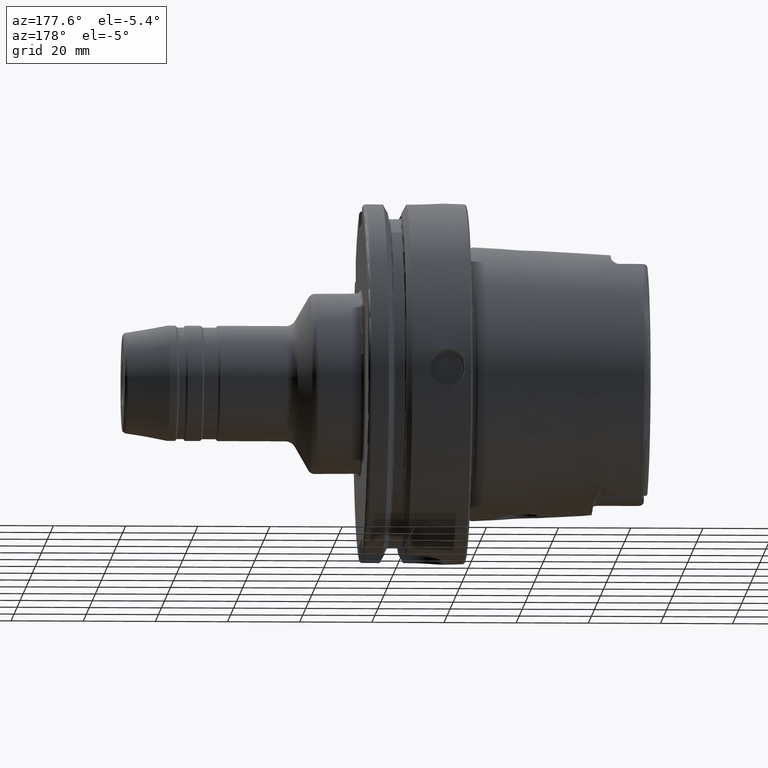
[diagram: clean part render]
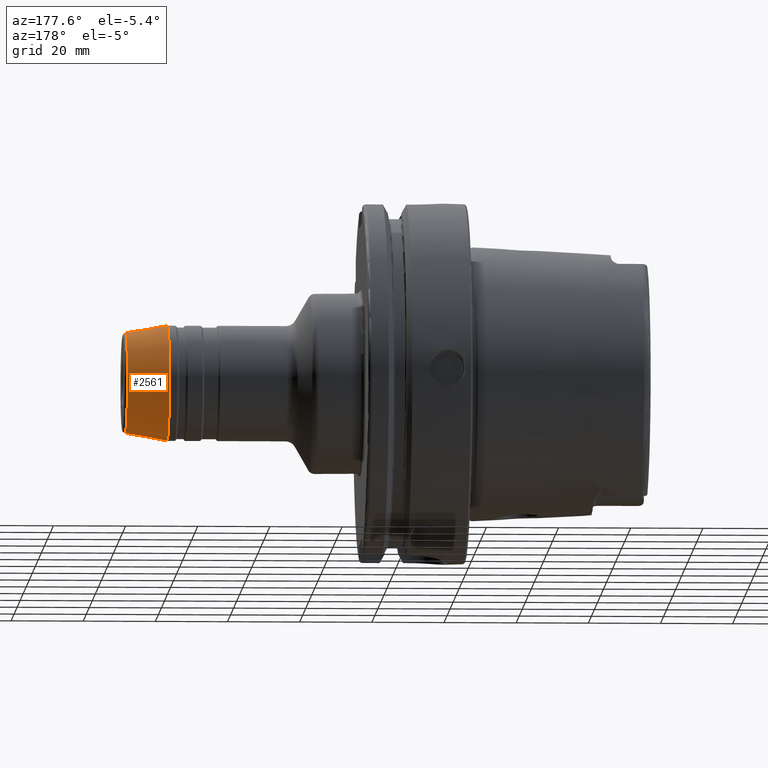
[diagram: same view with one face highlighted and labeled with its STEP entity id]
A machine part, auxiliary view. The second image highlights one B-rep face of the part: STEP entity #2561.
In plain terms, the highlighted conical surface has half-angle 10 deg.
Its self-contained STEP definition (entity closure, byte-faithful):
#148=CONICAL_SURFACE('',#2783,14.9,0.174532925199433);
#172=LINE('',#4094,#286);
#286=VECTOR('',#3258,14.9);
#449=FACE_OUTER_BOUND('',#585,.T.);
#585=EDGE_LOOP('',(#1807,#1808,#1809,#1810,#1811,#1812,#1813,#1814));
#777=CIRCLE('',#2779,15.9848077530122);
#778=CIRCLE('',#2780,15.9848077530122);
#780=CIRCLE('',#2782,15.9848077530122);
#781=CIRCLE('',#2784,13.9457081218349);
#782=CIRCLE('',#2785,13.9457081218349);
#783=CIRCLE('',#2786,13.9457081218349);
#1001=VERTEX_POINT('',#4081);
#1002=VERTEX_POINT('',#4082);
#1003=VERTEX_POINT('',#4084);
#1004=VERTEX_POINT('',#4089);
#1005=VERTEX_POINT('',#4090);
#1006=VERTEX_POINT('',#4092);
#1312=EDGE_CURVE('',#1001,#1002,#777,.T.);
#1313=EDGE_CURVE('',#1002,#1003,#778,.T.);
#1315=EDGE_CURVE('',#1003,#1001,#780,.T.);
#1316=EDGE_CURVE('',#1004,#1005,#781,.T.);
#1317=EDGE_CURVE('',#1006,#1004,#782,.T.);
#1318=EDGE_CURVE('',#1006,#1002,#172,.T.);
#1319=EDGE_CURVE('',#1005,#1006,#783,.T.);
#1807=ORIENTED_EDGE('',*,*,#1316,.F.);
#1808=ORIENTED_EDGE('',*,*,#1317,.F.);
#1809=ORIENTED_EDGE('',*,*,#1318,.T.);
#1810=ORIENTED_EDGE('',*,*,#1312,.F.);
#1811=ORIENTED_EDGE('',*,*,#1315,.F.);
#1812=ORIENTED_EDGE('',*,*,#1313,.F.);
#1813=ORIENTED_EDGE('',*,*,#1318,.F.);
#1814=ORIENTED_EDGE('',*,*,#1319,.F.);
#2561=ADVANCED_FACE('',(#449),#148,.T.);
#2779=AXIS2_PLACEMENT_3D('',#4083,#3244,#3245);
#2780=AXIS2_PLACEMENT_3D('',#4085,#3246,#3247);
#2782=AXIS2_PLACEMENT_3D('',#4087,#3250,#3251);
#2783=AXIS2_PLACEMENT_3D('',#4088,#3252,#3253);
#2784=AXIS2_PLACEMENT_3D('',#4091,#3254,#3255);
#2785=AXIS2_PLACEMENT_3D('',#4093,#3256,#3257);
#2786=AXIS2_PLACEMENT_3D('',#4095,#3259,#3260);
#3244=DIRECTION('center_axis',(-1.,0.,0.));
#3245=DIRECTION('ref_axis',(0.,-1.,3.06161699786838E-17));
#3246=DIRECTION('center_axis',(-1.,0.,0.));
#3247=DIRECTION('ref_axis',(0.,-1.,3.06161699786838E-17));
#3250=DIRECTION('center_axis',(-1.,0.,0.));
#3251=DIRECTION('ref_axis',(0.,-1.,3.06161699786838E-17));
#3252=DIRECTION('center_axis',(-1.,0.,0.));
#3253=DIRECTION('ref_axis',(0.,1.,0.));
#3254=DIRECTION('center_axis',(1.,0.,0.));
#3255=DIRECTION('ref_axis',(0.,-1.,3.06161699786838E-17));
#3256=DIRECTION('center_axis',(1.,0.,0.));
#3257=DIRECTION('ref_axis',(0.,-1.,3.06161699786838E-17));
#3258=DIRECTION('',(-0.984807753012208,-0.173648177666931,-2.12657684957577E-17));
#3259=DIRECTION('center_axis',(1.,0.,0.));
#3260=DIRECTION('ref_axis',(0.,-1.,3.06161699786838E-17));
#4081=CARTESIAN_POINT('',(82.6093395109821,15.9848077530122,-4.89393591242805E-15));
#4082=CARTESIAN_POINT('',(82.6093395109821,-15.9848077530122,-1.95757436497122E-15));
#4083=CARTESIAN_POINT('Origin',(82.6093395109821,0.,-2.44696795621402E-15));
#4084=CARTESIAN_POINT('',(82.6093395109821,-1.95757436497122E-15,15.9848077530122));
#4085=CARTESIAN_POINT('Origin',(82.6093395109821,0.,-2.44696795621402E-15));
#4087=CARTESIAN_POINT('Origin',(82.6093395109821,0.,-2.44696795621402E-15));
#4088=CARTESIAN_POINT('Origin',(88.7615899984205,0.,0.));
#4089=CARTESIAN_POINT('',(94.1736481776669,13.9457081218349,-8.5392834066242E-16));
#4090=CARTESIAN_POINT('',(94.1736481776669,-1.70785668132484E-15,13.9457081218349));
#4091=CARTESIAN_POINT('Origin',(94.1736481776669,0.,-2.13482085165605E-15));
#4092=CARTESIAN_POINT('',(94.1736481776669,-13.9457081218349,-1.70785668132484E-15));
#4093=CARTESIAN_POINT('Origin',(94.1736481776669,0.,-2.13482085165605E-15));
#4094=CARTESIAN_POINT('',(88.7615899984205,-14.9,-1.82472373072956E-15));
#4095=CARTESIAN_POINT('Origin',(94.1736481776669,0.,-2.13482085165605E-15));